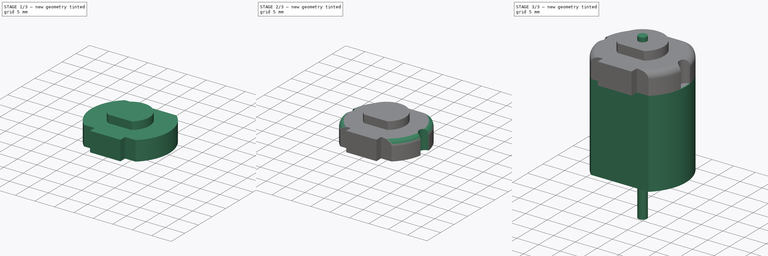
[diagram: build sequence overview — one tinted view per stage of 3, left to right]
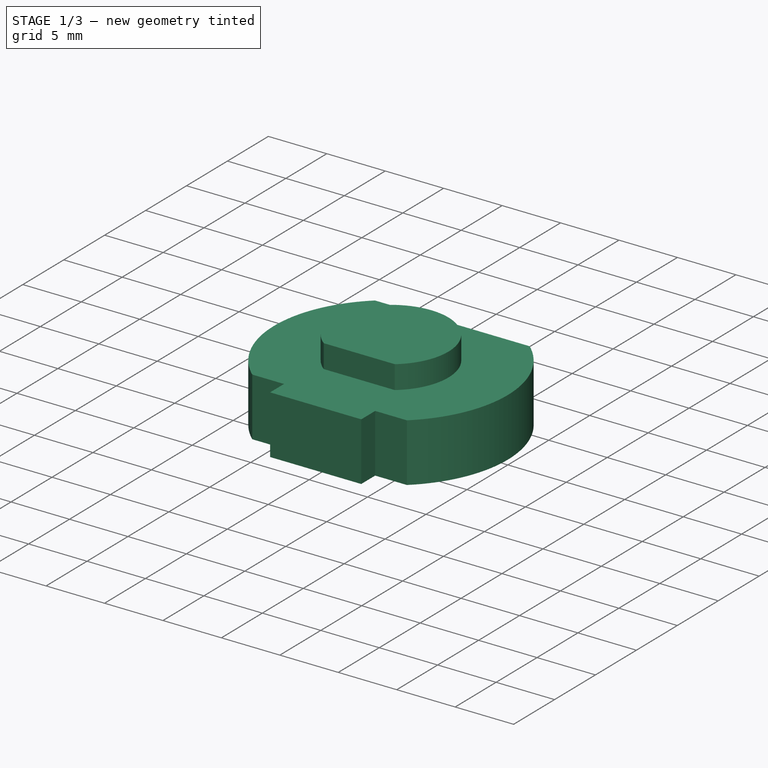
[diagram: stage 1 of 3 — iso view after this stage's code; geometry added in this stage tinted green]
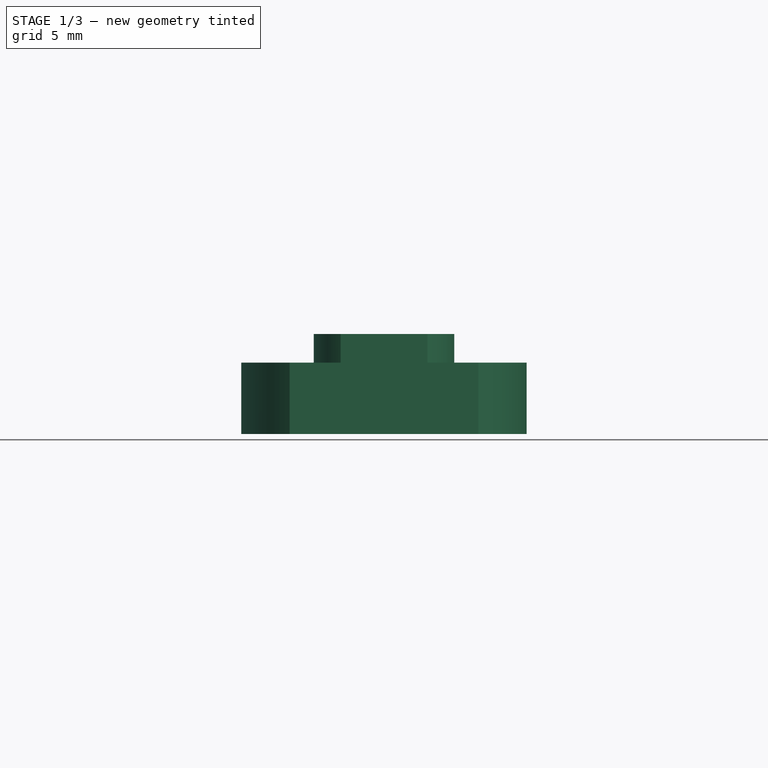
[diagram: stage 1 of 3 — front view after this stage's code; geometry added in this stage tinted green]
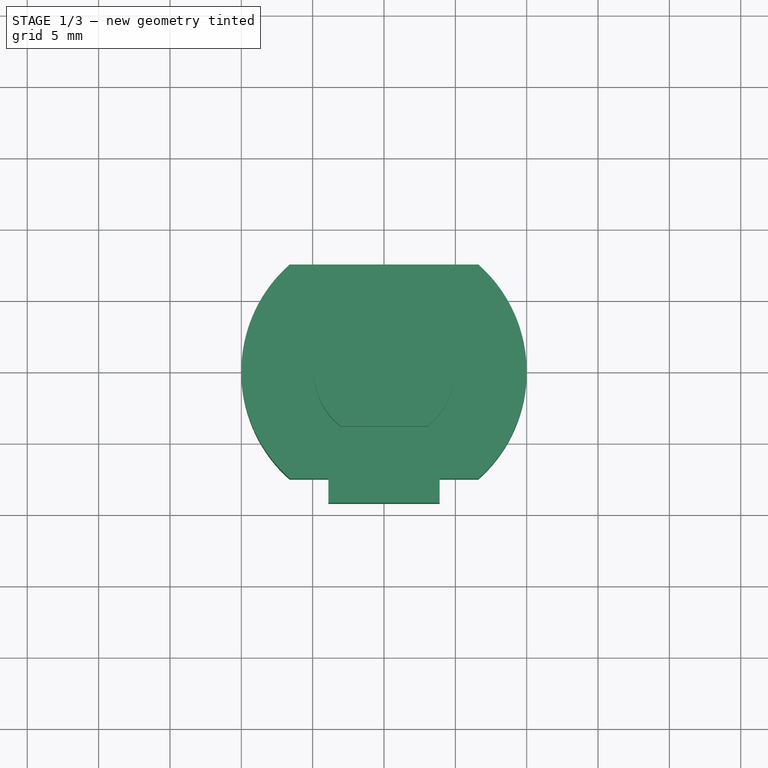
[diagram: stage 1 of 3 — top view after this stage's code; geometry added in this stage tinted green]
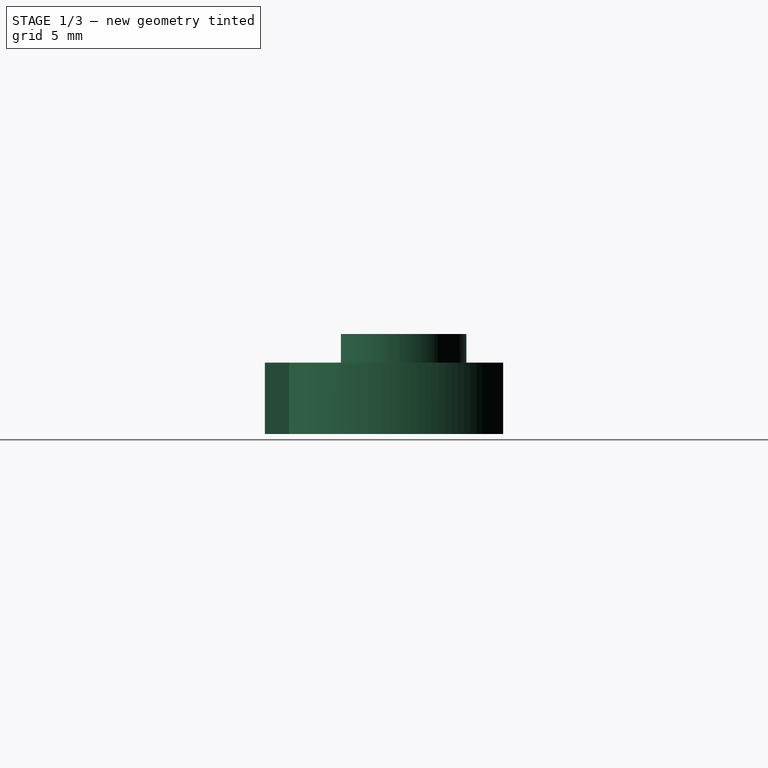
[diagram: stage 1 of 3 — right view after this stage's code; geometry added in this stage tinted green]
FCSTD DOCUMENT  (FreeCAD 0.21R29865 (Git))
Label: Motor-CC-6V
License: Creative Commons Attribution-NonCommercial-ShareAlike
LicenseURL: http://creativecommons.org/licenses/by-nc-sa/4.0/
objects: Sketcher::SketchObject×5, PartDesign::Pad×4, PartDesign::Body×3, PartDesign::Fillet×1, PartDesign::Pocket×1, App::DocumentObjectGroup×1, App::Part×1
note: 20 computed .brp shape members not serialized (recipe doc carries the construction recipe); baked Part::Feature solids carry a one-line shape summary decoded from their .brp

FEATURE [PartDesign::Body] Body  label="Metal"
  Group = -> [Sketch,Pad]
  Origin = -> Origin001
  Tip = -> Pad
FEATURE [Sketcher::SketchObject] Sketch001
  AttachmentOffset = pos=(0,0,10) rot=(0,0,1;0rad)
  FullyConstrained = true
  MapMode = 5
  Placement = pos=(0,0,10) rot=(0,0,1;0rad)
  Support = -> [XY_Plane002]
  sketch-geometry (8):
    g0: ArcOfCircle CenterX=0 CenterY=0 CenterZ=0 NormalX=0 NormalY=0 NormalZ=1 AngleXU=0 Radius=10 StartAngle=2.29353 EndAngle=3.98965
    g1: LineSegment StartX=-6.61438 StartY=7.5 StartZ=0 EndX=6.61438 EndY=7.5 EndZ=0
    g2: LineSegment StartX=-6.61438 StartY=-7.5 StartZ=0 EndX=-3.9 EndY=-7.5 EndZ=0
    g3: LineSegment StartX=-3.9 StartY=-7.5 StartZ=0 EndX=-3.9 EndY=-9.2 EndZ=0
    g4: LineSegment StartX=-3.9 StartY=-9.2 StartZ=0 EndX=3.9 EndY=-9.2 EndZ=0
    g5: LineSegment StartX=3.9 StartY=-9.2 StartZ=0 EndX=3.9 EndY=-7.5 EndZ=0
    g6: LineSegment StartX=3.9 StartY=-7.5 StartZ=0 EndX=6.61438 EndY=-7.5 EndZ=0
    g7: ArcOfCircle CenterX=0 CenterY=0 CenterZ=0 NormalX=0 NormalY=0 NormalZ=1 AngleXU=0 Radius=10 StartAngle=5.43512 EndAngle=7.13125
  constraints (23):
    c: Coincident(g0,g-1)
    c: Diameter(g0) = 20
    c: Horizontal(g1)
    c: Horizontal(g2)
    c: Coincident(g2,g3)
    c: Coincident(g3,g4)
    c: Horizontal(g4)
    c: Coincident(g4,g5)
    c: Coincident(g5,g6)
    c: Horizontal(g6)
    c: Coincident(g7,g1)
    c: Coincident(g0,g1)
    c: Equal(g0,g7)
    c: Coincident(g0,g2)
    c: Coincident(g7,g6)
    c: Coincident(g0,g7)
    c: Vertical(g6,g1)
    c: DistanceY(g6,g1) = 15
    c: Vertical(g5)
    c: Vertical(g3)
    c: Symmetric(g2,g5,g-2)
    c: DistanceX(g4,g4) = 7.8
    c: DistanceY(g3,g3) = 1.7
FEATURE [PartDesign::Pad] Pad001
  Direction = (0,0,1)
  Length = 5
  Length2 = 10
  Profile = -> Sketch001
  ReferenceAxis = -> Sketch001 [N_Axis]
  Type = 0
FEATURE [PartDesign::Body] Body002  label="Axis"
  Group = -> [Sketch002,Pad002]
  Origin = -> Origin003
  Tip = -> Pad002
FEATURE [Sketcher::SketchObject] Sketch003
  FullyConstrained = true
  MapMode = 5
  Placement = pos=(0,0,15) rot=(0,0,1;0rad)
  Support = -> [Pad001]
  sketch-geometry (3):
    g0: ArcOfCircle CenterX=0 CenterY=0 CenterZ=0 NormalX=0 NormalY=0 NormalZ=1 AngleXU=0 Radius=4.925 StartAngle=5.37757 EndAngle=10.3304
    g1: LineSegment StartX=-3.03974 StartY=-3.875 StartZ=0 EndX=3.03974 EndY=-3.875 EndZ=0
    g2: GeomPoint X=0 Y=4.925 Z=0
  constraints (8):
    c: Coincident(g0,g-1)
    c: Diameter(g0) = 9.85
    c: Horizontal(g1)
    c: Coincident(g0,g1)
    c: Coincident(g0,g1)
    c: PointOnObject(g2,g0)
    c: PointOnObject(g2,g-2)
    c: DistanceY(g0,g2) = 8.8
FEATURE [PartDesign::Pad] Pad003
  BaseFeature = -> Pad001
  Direction = (0,0,1)
  Length = 2
  Length2 = 10
  Profile = -> Sketch003
  ReferenceAxis = -> Sketch003 [N_Axis]
  Type = 0
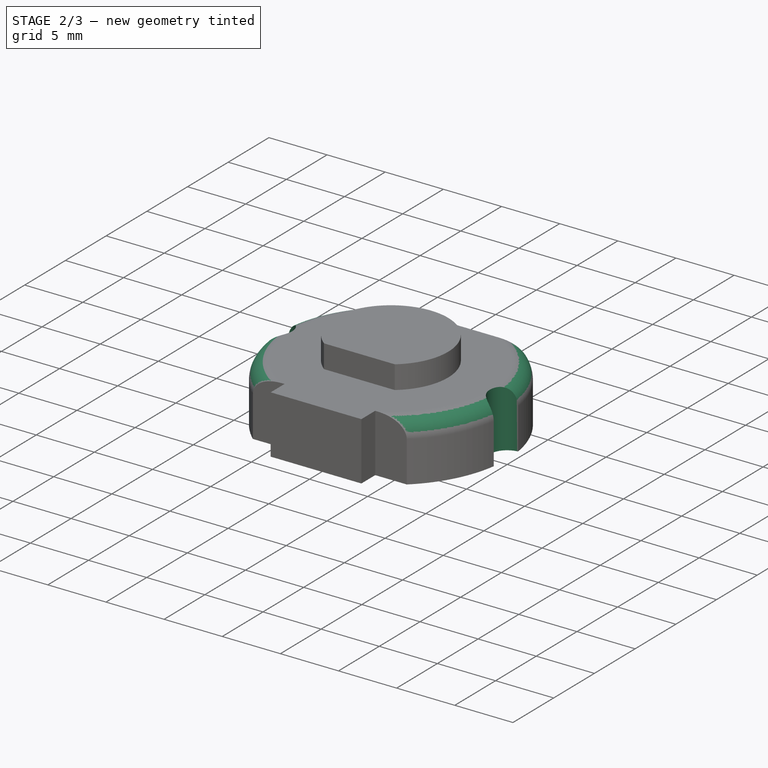
[diagram: stage 2 of 3 — iso view after this stage's code; geometry added in this stage tinted green]
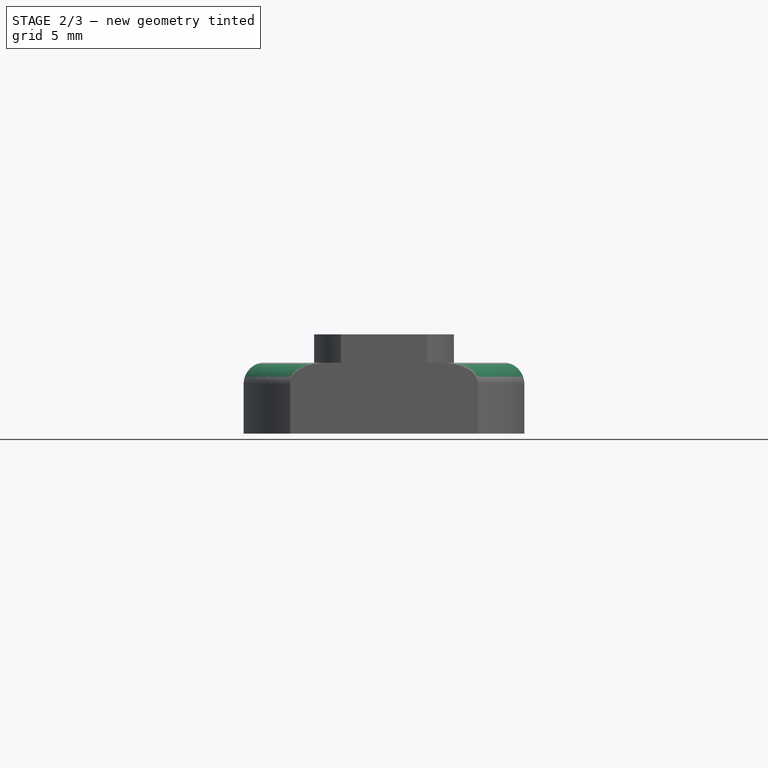
[diagram: stage 2 of 3 — front view after this stage's code; geometry added in this stage tinted green]
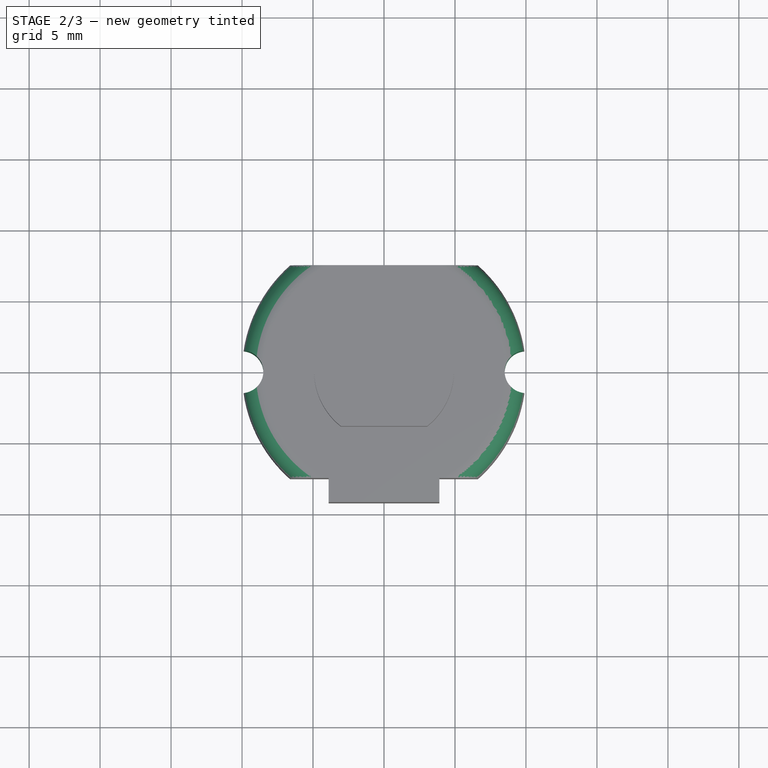
[diagram: stage 2 of 3 — top view after this stage's code; geometry added in this stage tinted green]
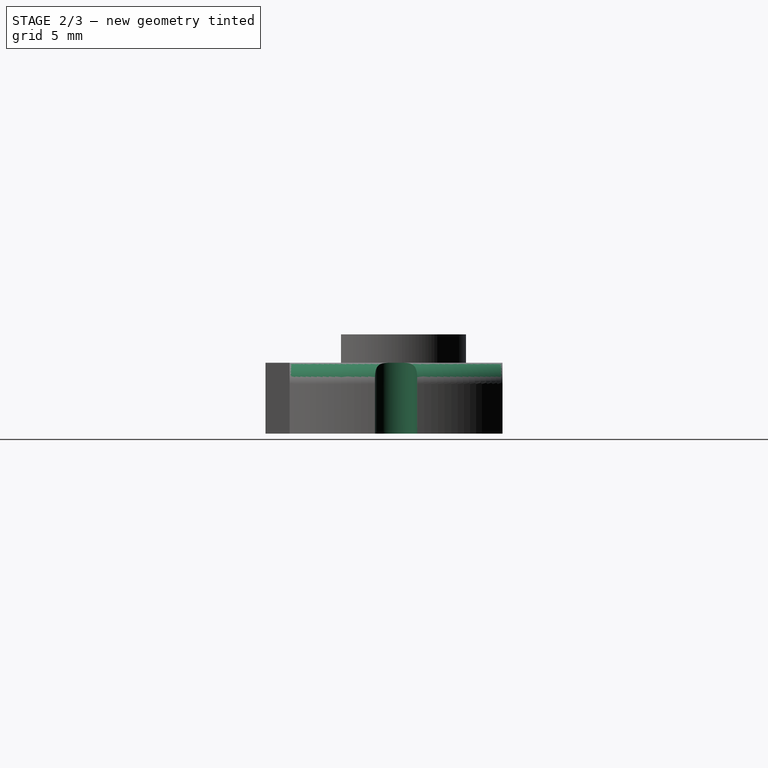
[diagram: stage 2 of 3 — right view after this stage's code; geometry added in this stage tinted green]
FEATURE [Sketcher::SketchObject] Sketch004
  ExternalGeometry = -> [Pad003]
  FullyConstrained = true
  MapMode = 5
  Placement = pos=(0,0,15) rot=(0,0,1;0rad)
  Support = -> [Pad003]
  sketch-geometry (2):
    g0: Circle CenterX=-10 CenterY=0 CenterZ=0 NormalX=0 NormalY=0 NormalZ=1 AngleXU=0 Radius=1.5
    g1: Circle CenterX=10 CenterY=0 CenterZ=0 NormalX=0 NormalY=0 NormalZ=1 AngleXU=0 Radius=1.5
  constraints (6):
    c: PointOnObject(g0,g-1)
    c: PointOnObject(g1,g-4)
    c: Equal(g1,g0)
    c: PointOnObject(g1,g-1)
    c: PointOnObject(g0,g-3)
    c: Diameter(g1) = 3
FEATURE [PartDesign::Fillet] Fillet
  Base = -> Pad003 [Edge16,Edge4]
  BaseFeature = -> Pad003
  Radius = 1.5
  SupportTransform = false
  UseAllEdges = false
FEATURE [PartDesign::Pocket] Pocket
  BaseFeature = -> Fillet
  Direction = (0,0,-1)
  Length = 5
  Length2 = 5
  Profile = -> Sketch004
  ReferenceAxis = -> Sketch004 [N_Axis]
  Type = 2
FEATURE [PartDesign::Body] Body001  label="Plastic"
  Group = -> [Sketch001,Pad001,Sketch003,Pad003,Sketch004,Fillet,Pocket]
  Origin = -> Origin002
  Tip = -> Fillet
FEATURE [App::DocumentObjectGroup] Group  label="Motor"
  Group = -> [Body,Body001,Body002]
FEATURE [App::Part] Part  label="Motor CC 6V"
  Group = -> [Body,Body001,Group,Body002]
  Origin = -> Origin
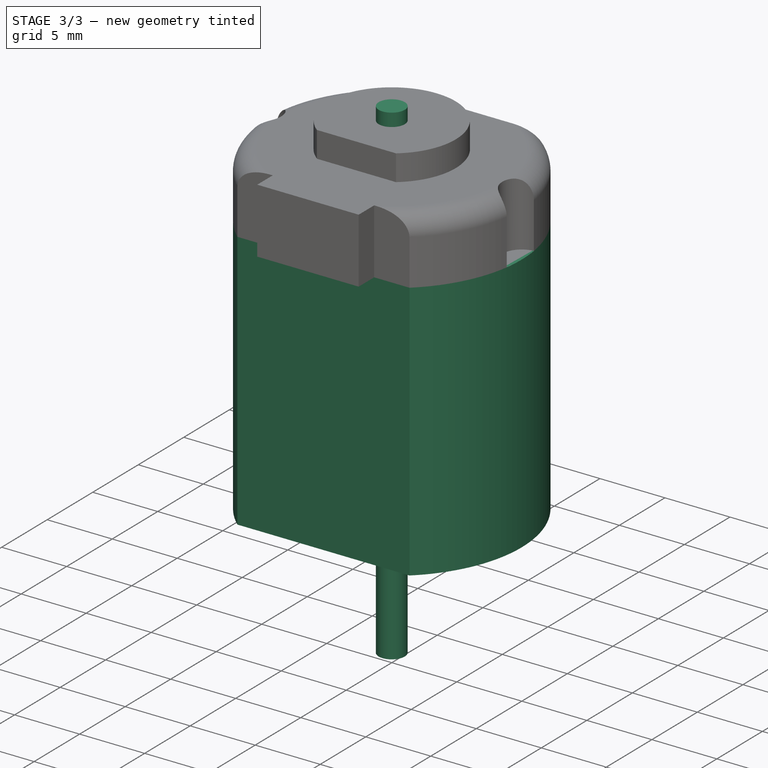
[diagram: stage 3 of 3 — iso view after this stage's code; geometry added in this stage tinted green]
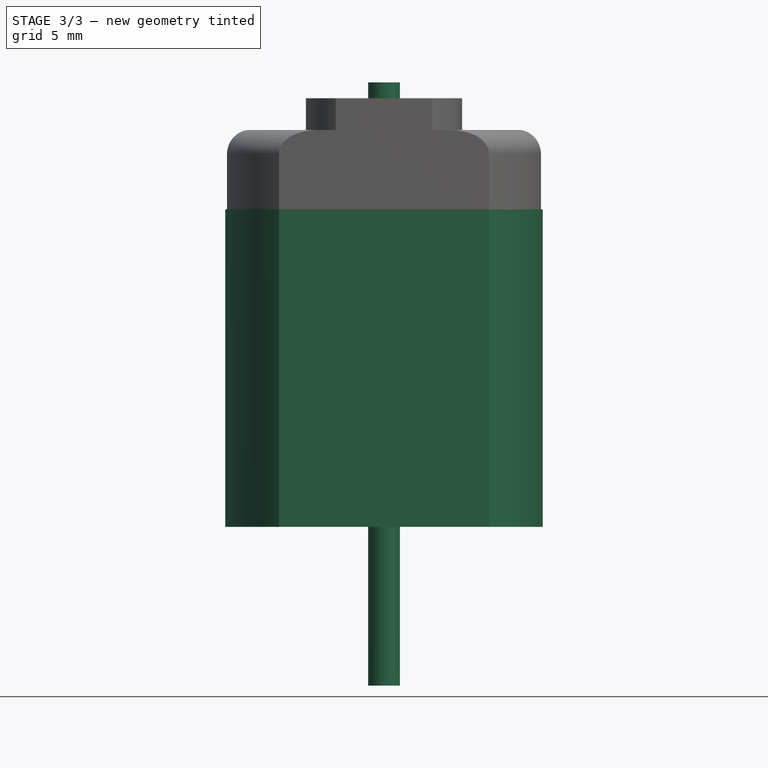
[diagram: stage 3 of 3 — front view after this stage's code; geometry added in this stage tinted green]
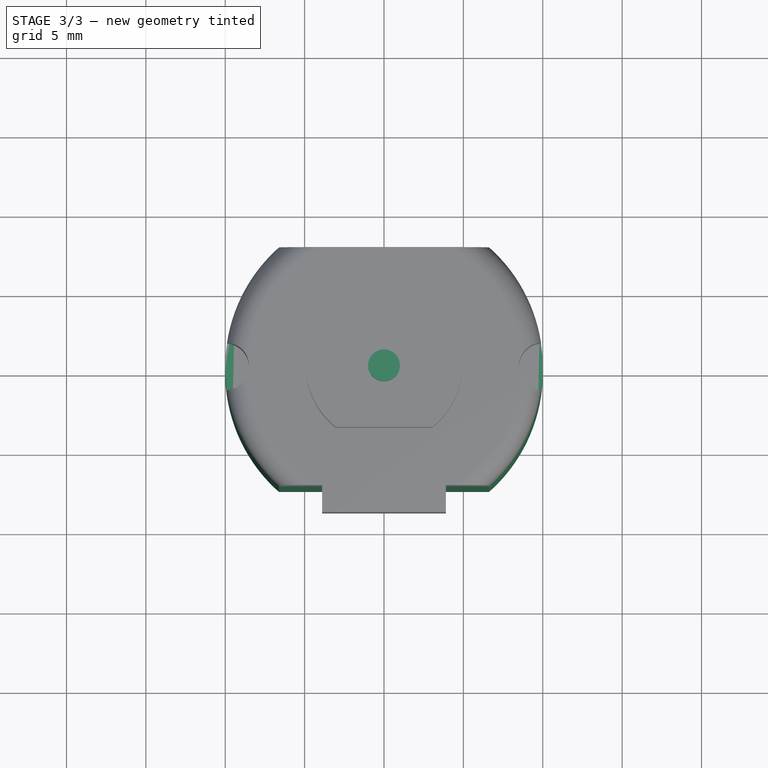
[diagram: stage 3 of 3 — top view after this stage's code; geometry added in this stage tinted green]
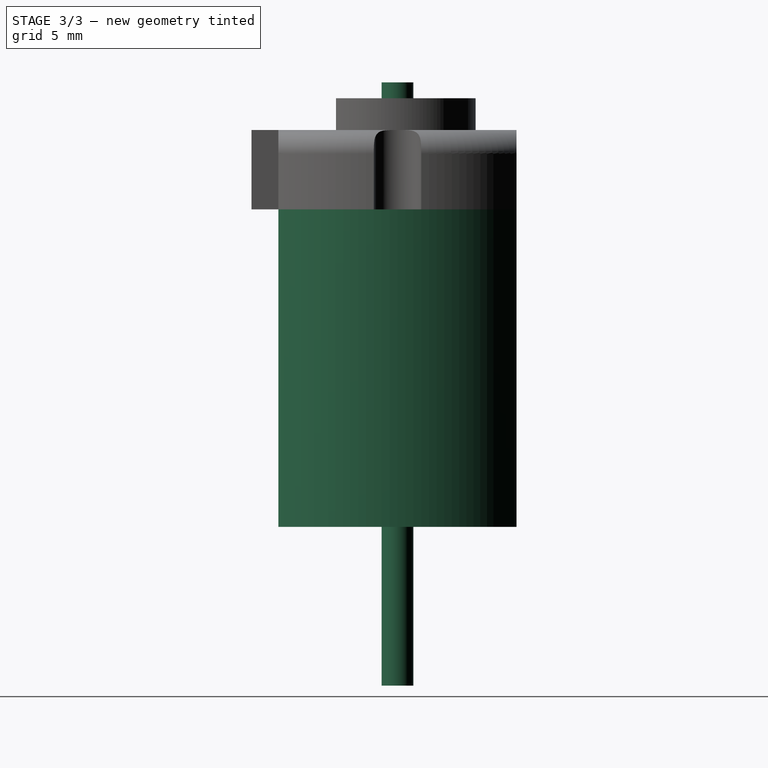
[diagram: stage 3 of 3 — right view after this stage's code; geometry added in this stage tinted green]
FEATURE [Sketcher::SketchObject] Sketch
  FullyConstrained = true
  MapMode = 5
  Support = -> [XY_Plane001]
  sketch-geometry (4):
    g0: ArcOfCircle CenterX=0 CenterY=0 CenterZ=0 NormalX=0 NormalY=0 NormalZ=1 AngleXU=0 Radius=10 StartAngle=2.29353 EndAngle=3.98965
    g1: LineSegment StartX=-6.61438 StartY=7.5 StartZ=0 EndX=6.61438 EndY=7.5 EndZ=0
    g2: LineSegment StartX=6.61438 StartY=-7.5 StartZ=0 EndX=-6.61438 EndY=-7.5 EndZ=0
    g3: ArcOfCircle CenterX=0 CenterY=0 CenterZ=0 NormalX=0 NormalY=0 NormalZ=1 AngleXU=0 Radius=10 StartAngle=5.43512 EndAngle=7.13125
  constraints (12):
    c: Coincident(g0,g-1)
    c: Diameter(g0) = 20
    c: Horizontal(g1)
    c: Horizontal(g2)
    c: Equal(g2,g1)
    c: DistanceY(g2,g1) = 15
    c: Coincident(g3,g1)
    c: Coincident(g0,g1)
    c: Equal(g0,g3)
    c: Coincident(g0,g2)
    c: Coincident(g3,g2)
    c: Coincident(g0,g3)
FEATURE [PartDesign::Pad] Pad
  Direction = (0,0,1)
  Length = 20
  Length2 = 10
  Midplane = true
  Profile = -> Sketch
  ReferenceAxis = -> Sketch [N_Axis]
  Type = 0
FEATURE [Sketcher::SketchObject] Sketch002
  FullyConstrained = true
  MapMode = 5
  Support = -> [XY_Plane003]
  sketch-geometry (1):
    g0: Circle CenterX=0 CenterY=0 CenterZ=0 NormalX=0 NormalY=0 NormalZ=1 AngleXU=0 Radius=1
  constraints (2):
    c: Coincident(g0,g-1)
    c: Diameter(g0) = 2
FEATURE [PartDesign::Pad] Pad002
  Direction = (0,0,1)
  Length = 18
  Length2 = 20
  Profile = -> Sketch002
  ReferenceAxis = -> Sketch002 [N_Axis]
  Type = 4
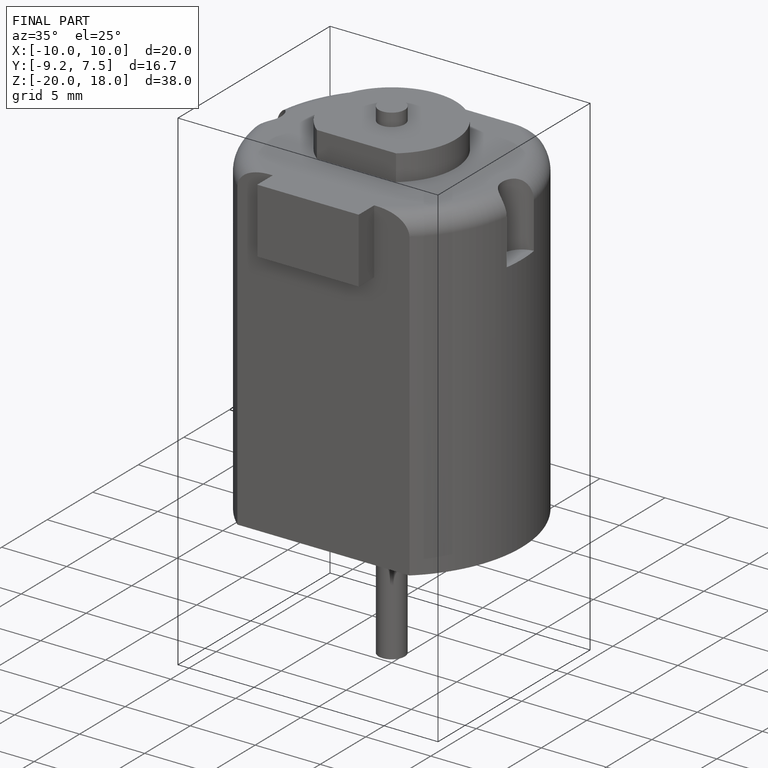
[diagram: finished part — iso view with bounding-box wireframe]
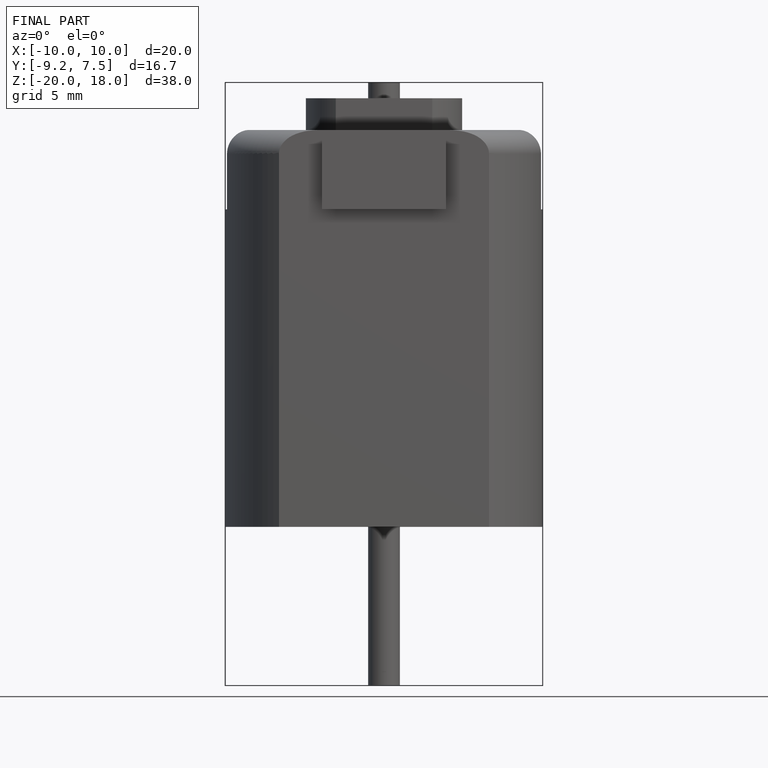
[diagram: finished part — front view with bounding-box wireframe]
